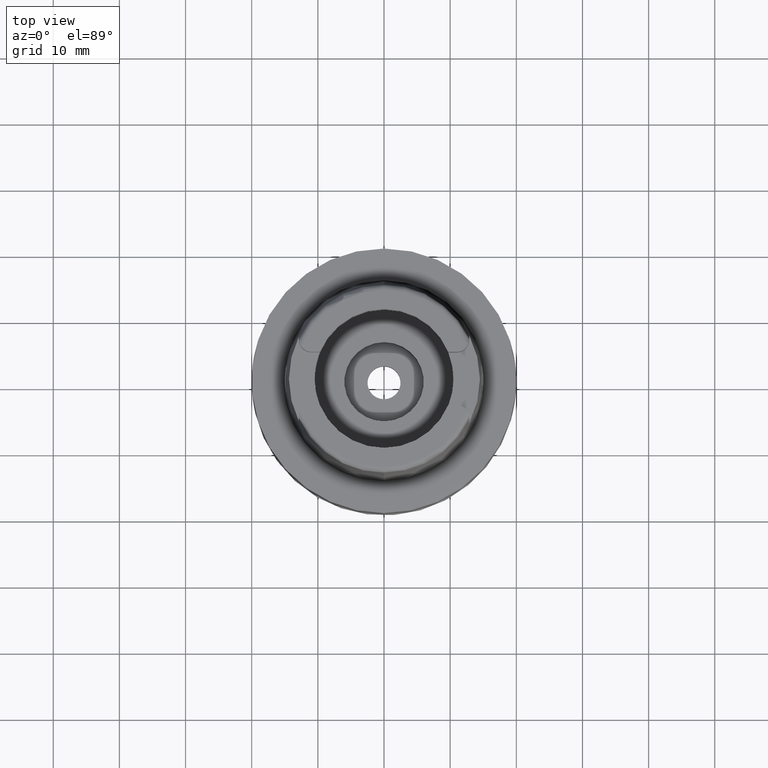
[diagram: clean part render]
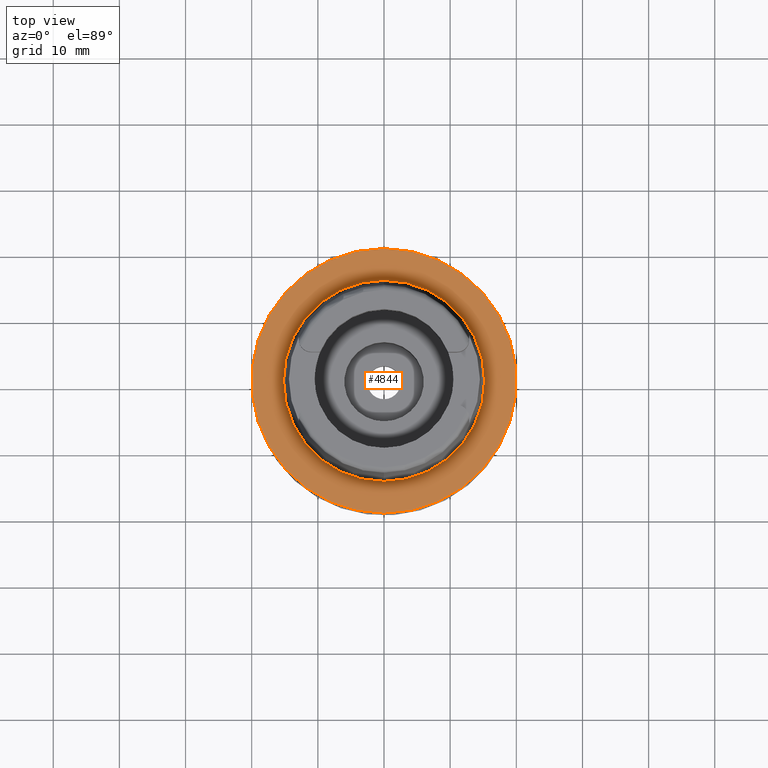
[diagram: same view with one face highlighted and labeled with its STEP entity id]
A machine part, top view. The second image highlights one B-rep face of the part: STEP entity #4844.
In plain terms, the highlighted planar face has unit normal (0, 0, 1).
Its self-contained STEP definition (entity closure, byte-faithful):
#181 = EDGE_CURVE ( 'NONE', #2595, #2688, #2153, .T. ) ;
#578 = AXIS2_PLACEMENT_3D ( 'NONE', #4353, #1525, #4402 ) ;
#1101 = DIRECTION ( 'NONE',  ( 0.0000000000000000000, 0.0000000000000000000, -1.000000000000000000 ) ) ;
#1201 = AXIS2_PLACEMENT_3D ( 'NONE', #1958, #1985, #2343 ) ;
#1268 = EDGE_CURVE ( 'NONE', #3023, #3751, #1463, .T. ) ;
#1463 = CIRCLE ( 'NONE', #3980, 15.20000663301000010 ) ;
#1471 = CARTESIAN_POINT ( 'NONE',  ( 0.0000000000000000000, 15.20000663301000010, 7.958078640512999903E-13 ) ) ;
#1505 = DIRECTION ( 'NONE',  ( 0.0000000000000000000, 1.000000000000000000, 0.0000000000000000000 ) ) ;
#1506 = DIRECTION ( 'NONE',  ( 0.0000000000000000000, 0.0000000000000000000, 1.000000000000000000 ) ) ;
#1525 = DIRECTION ( 'NONE',  ( 0.0000000000000000000, 0.0000000000000000000, 1.000000000000000000 ) ) ;
#1618 = CARTESIAN_POINT ( 'NONE',  ( 0.0000000000000000000, -15.20000663301000010, 4.547473508865000658E-13 ) ) ;
#1821 = CARTESIAN_POINT ( 'NONE',  ( 0.0000000000000000000, 20.00000000000000000, 6.631732200427999741E-14 ) ) ;
#1838 = EDGE_LOOP ( 'NONE', ( #3970, #5241 ) ) ;
#1958 = CARTESIAN_POINT ( 'NONE',  ( 0.0000000000000000000, 0.0000000000000000000, 1.278976924367999843E-13 ) ) ;
#1985 = DIRECTION ( 'NONE',  ( 0.0000000000000000000, 0.0000000000000000000, -1.000000000000000000 ) ) ;
#2089 = CARTESIAN_POINT ( 'NONE',  ( 0.0000000000000000000, 0.0000000000000000000, 7.958078640512999903E-13 ) ) ;
#2153 = CIRCLE ( 'NONE', #1201, 20.00000000000000000 ) ;
#2296 = FACE_OUTER_BOUND ( 'NONE', #2951, .T. ) ;
#2343 = DIRECTION ( 'NONE',  ( 0.0000000000000000000, -1.000000000000000000, 0.0000000000000000000 ) ) ;
#2496 = CARTESIAN_POINT ( 'NONE',  ( 0.0000000000000000000, -20.00000000000000000, 1.278976924367999843E-13 ) ) ;
#2595 = VERTEX_POINT ( 'NONE', #2496 ) ;
#2688 = VERTEX_POINT ( 'NONE', #1821 ) ;
#2874 = AXIS2_PLACEMENT_3D ( 'NONE', #3599, #1101, #1505 ) ;
#2951 = EDGE_LOOP ( 'NONE', ( #3365, #3268 ) ) ;
#3023 = VERTEX_POINT ( 'NONE', #1618 ) ;
#3250 = DIRECTION ( 'NONE',  ( 0.0000000000000000000, -1.000000000000000000, 0.0000000000000000000 ) ) ;
#3268 = ORIENTED_EDGE ( 'NONE', *, *, #181, .F. ) ;
#3365 = ORIENTED_EDGE ( 'NONE', *, *, #3406, .F. ) ;
#3406 = EDGE_CURVE ( 'NONE', #2688, #2595, #4514, .T. ) ;
#3599 = CARTESIAN_POINT ( 'NONE',  ( 0.0000000000000000000, 0.0000000000000000000, 1.278976924367999843E-13 ) ) ;
#3749 = DIRECTION ( 'NONE',  ( 0.0000000000000000000, 0.0000000000000000000, 1.000000000000000000 ) ) ;
#3751 = VERTEX_POINT ( 'NONE', #1471 ) ;
#3953 = CARTESIAN_POINT ( 'NONE',  ( 0.0000000000000000000, 0.0000000000000000000, 0.0000000000000000000 ) ) ;
#3970 = ORIENTED_EDGE ( 'NONE', *, *, #5093, .F. ) ;
#3980 = AXIS2_PLACEMENT_3D ( 'NONE', #2089, #3749, #3250 ) ;
#4035 = FACE_BOUND ( 'NONE', #1838, .T. ) ;
#4353 = CARTESIAN_POINT ( 'NONE',  ( 0.0000000000000000000, 0.0000000000000000000, 7.958078640512999903E-13 ) ) ;
#4381 = PLANE ( 'NONE',  #4904 ) ;
#4402 = DIRECTION ( 'NONE',  ( 0.0000000000000000000, 1.000000000000000000, 0.0000000000000000000 ) ) ;
#4438 = DIRECTION ( 'NONE',  ( 1.000000000000000000, 0.0000000000000000000, 0.0000000000000000000 ) ) ;
#4514 = CIRCLE ( 'NONE', #2874, 20.00000000000000000 ) ;
#4734 = CIRCLE ( 'NONE', #578, 15.20000663301000010 ) ;
#4844 = ADVANCED_FACE ( 'NONE', ( #2296, #4035 ), #4381, .T. ) ;
#4904 = AXIS2_PLACEMENT_3D ( 'NONE', #3953, #1506, #4438 ) ;
#5093 = EDGE_CURVE ( 'NONE', #3751, #3023, #4734, .T. ) ;
#5241 = ORIENTED_EDGE ( 'NONE', *, *, #1268, .F. ) ;